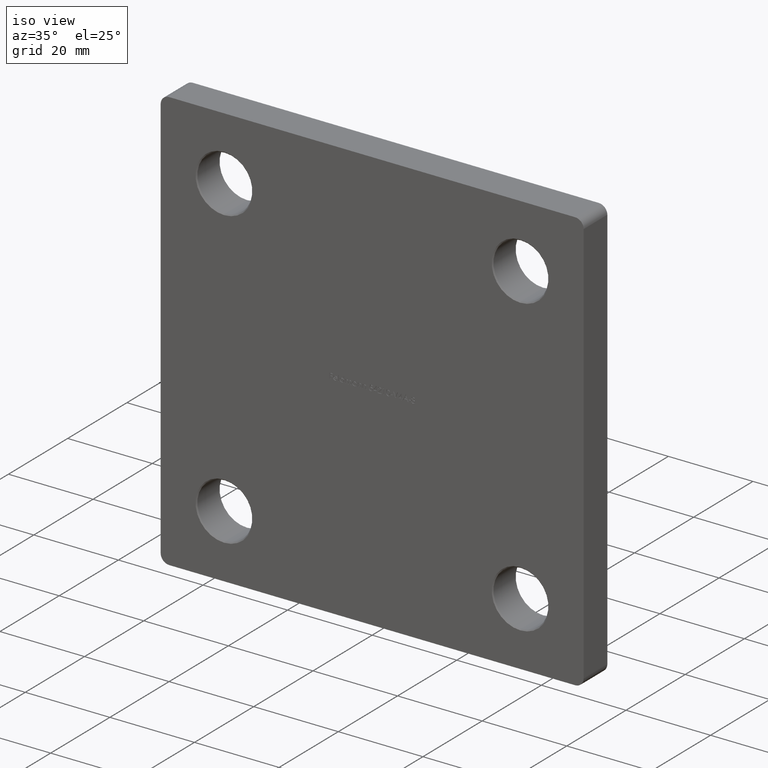
[diagram: clean part render]
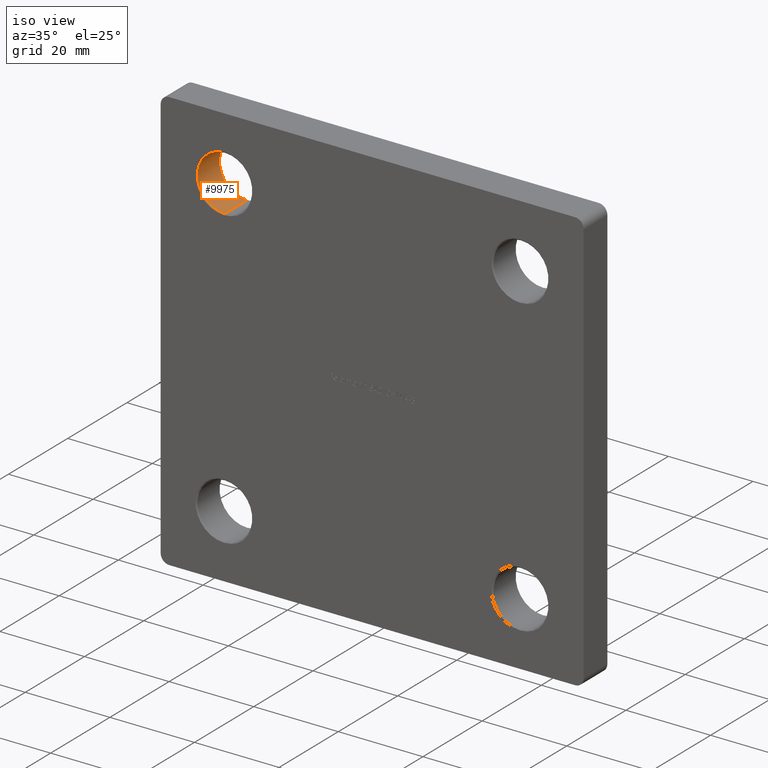
[diagram: same view with one face highlighted and labeled with its STEP entity id]
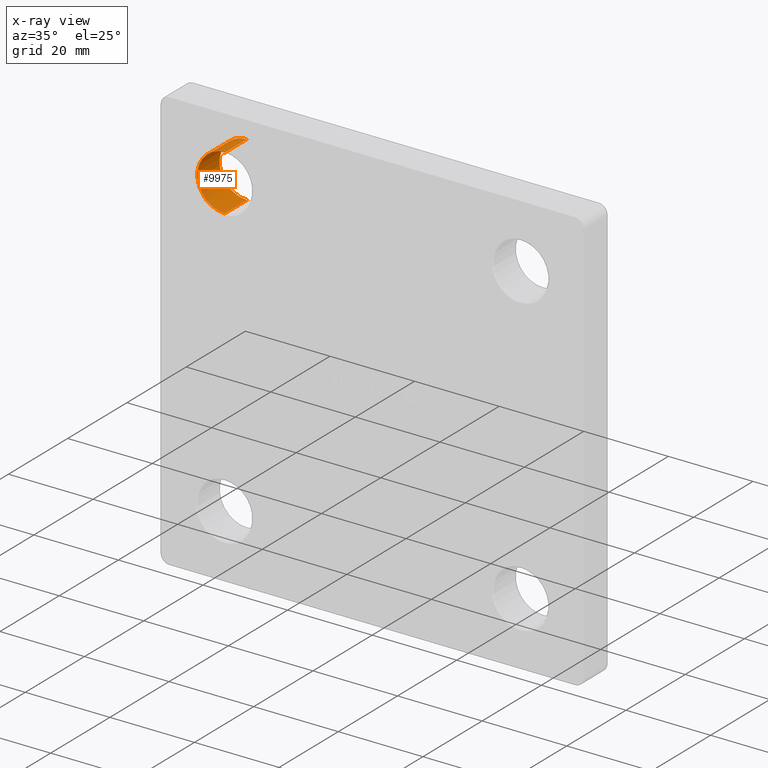
[diagram: x-ray of the same camera — body ghosted, the highlighted face saturated]
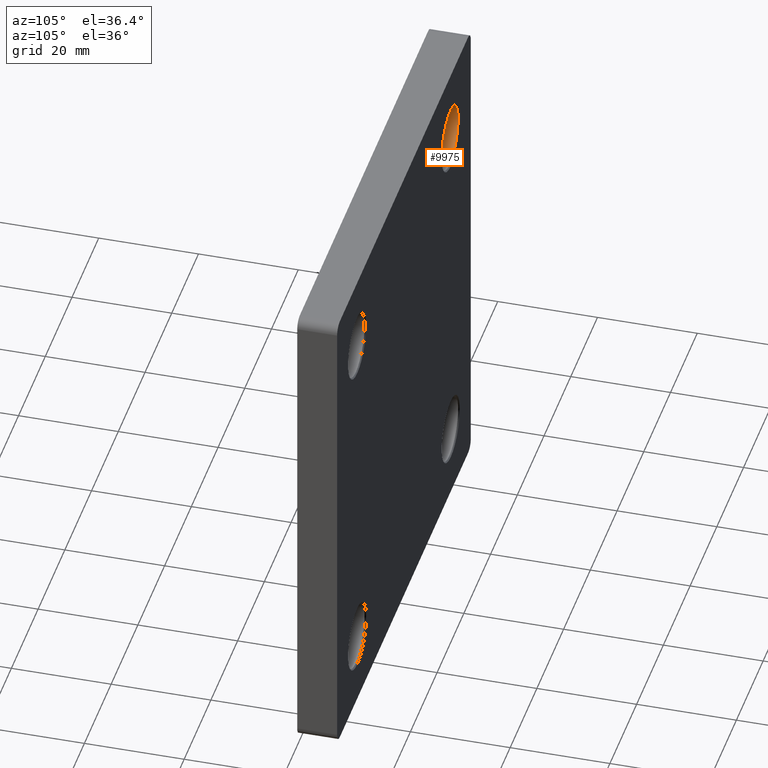
[diagram: same view with one face highlighted and labeled with its STEP entity id]
A machine part, iso view. The second image highlights one B-rep face of the part: STEP entity #9975.
The next image is the same camera in x-ray: the body ghosted, the highlighted face saturated — about 0% of this face is hidden behind the body in this view.
A second angle (auxiliary view) of the same face is appended — the face is thin or edge-on in the first view.
In plain terms, the highlighted cylindrical surface (edge-blend (fillet) strip) has radius 6.5 mm, axis along (-0, 1, -0).
Its self-contained STEP definition (entity closure, byte-faithful):
#603 = CIRCLE ( 'NONE', #4932, 6.499999999999999112 ) ;
#666 = ORIENTED_EDGE ( 'NONE', *, *, #9231, .F. ) ;
#1243 = DIRECTION ( 'NONE',  ( -0.000000000000000000, 1.000000000000000000, -0.000000000000000000 ) ) ;
#1772 = VERTEX_POINT ( 'NONE', #8252 ) ;
#2041 = FACE_OUTER_BOUND ( 'NONE', #12022, .T. ) ;
#2680 = LINE ( 'NONE', #11491, #9534 ) ;
#3484 = DIRECTION ( 'NONE',  ( 0.000000000000000000, 1.000000000000000000, 0.000000000000000000 ) ) ;
#3682 = CARTESIAN_POINT ( 'NONE',  ( -35.00000000000000000, 7.749999999999996447, 28.50000000000000355 ) ) ;
#4105 = DIRECTION ( 'NONE',  ( -0.000000000000000000, -1.000000000000000000, -0.000000000000000000 ) ) ;
#4392 = ORIENTED_EDGE ( 'NONE', *, *, #8236, .T. ) ;
#4932 = AXIS2_PLACEMENT_3D ( 'NONE', #11655, #3484, #5528 ) ;
#4969 = CARTESIAN_POINT ( 'NONE',  ( -35.00000000000000000, 0.000000000000000000, 41.50000000000000000 ) ) ;
#5373 = CYLINDRICAL_SURFACE ( 'NONE', #10254, 6.499999999999999112 ) ;
#5528 = DIRECTION ( 'NONE',  ( 0.000000000000000000, 0.000000000000000000, 1.000000000000000000 ) ) ;
#6281 = VERTEX_POINT ( 'NONE', #3682 ) ;
#6337 = LINE ( 'NONE', #4969, #12116 ) ;
#7042 = CARTESIAN_POINT ( 'NONE',  ( -35.00000000000000000, 0.2500000000000132672, 35.00000000000000000 ) ) ;
#8236 = EDGE_CURVE ( 'NONE', #6281, #12237, #603, .T. ) ;
#8252 = CARTESIAN_POINT ( 'NONE',  ( -35.00000000000000000, 0.2500000000000132672, 28.50000000000000355 ) ) ;
#8311 = CARTESIAN_POINT ( 'NONE',  ( -35.00000000000000000, 0.2500000000000132672, 41.50000000000000000 ) ) ;
#8960 = DIRECTION ( 'NONE',  ( -0.000000000000000000, 1.000000000000000000, -0.000000000000000000 ) ) ;
#9166 = DIRECTION ( 'NONE',  ( -0.000000000000000000, 1.000000000000000000, -0.000000000000000000 ) ) ;
#9178 = CIRCLE ( 'NONE', #12481, 6.499999999999999112 ) ;
#9231 = EDGE_CURVE ( 'NONE', #11922, #12237, #6337, .T. ) ;
#9534 = VECTOR ( 'NONE', #1243, 1000.000000000000000 ) ;
#9975 = ADVANCED_FACE ( 'NONE', ( #2041 ), #5373, .F. ) ;
#10090 = ORIENTED_EDGE ( 'NONE', *, *, #12397, .T. ) ;
#10116 = EDGE_CURVE ( 'NONE', #1772, #6281, #2680, .T. ) ;
#10254 = AXIS2_PLACEMENT_3D ( 'NONE', #13008, #8960, #13048 ) ;
#10725 = ORIENTED_EDGE ( 'NONE', *, *, #10116, .T. ) ;
#11491 = CARTESIAN_POINT ( 'NONE',  ( -35.00000000000000000, 0.000000000000000000, 28.50000000000000355 ) ) ;
#11655 = CARTESIAN_POINT ( 'NONE',  ( -35.00000000000000000, 7.749999999999996447, 35.00000000000000000 ) ) ;
#11922 = VERTEX_POINT ( 'NONE', #8311 ) ;
#11975 = CARTESIAN_POINT ( 'NONE',  ( -35.00000000000000000, 7.749999999999996447, 41.50000000000000000 ) ) ;
#12022 = EDGE_LOOP ( 'NONE', ( #10090, #10725, #4392, #666 ) ) ;
#12116 = VECTOR ( 'NONE', #9166, 1000.000000000000000 ) ;
#12193 = DIRECTION ( 'NONE',  ( 0.000000000000000000, 0.000000000000000000, 1.000000000000000000 ) ) ;
#12237 = VERTEX_POINT ( 'NONE', #11975 ) ;
#12397 = EDGE_CURVE ( 'NONE', #11922, #1772, #9178, .T. ) ;
#12481 = AXIS2_PLACEMENT_3D ( 'NONE', #7042, #4105, #12193 ) ;
#13008 = CARTESIAN_POINT ( 'NONE',  ( -35.00000000000000000, 0.000000000000000000, 35.00000000000000000 ) ) ;
#13048 = DIRECTION ( 'NONE',  ( 0.000000000000000000, 0.000000000000000000, 1.000000000000000000 ) ) ;